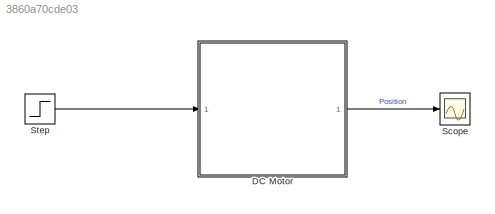
MODEL slx_3860a70cde03
KIND model
CONFIG AbsTol = auto
CONFIG EnableMultiTasking = off
CONFIG FixedStep = auto
CONFIG MaxStep = auto
CONFIG MinStep = auto
CONFIG RelTol = 1e-3
CONFIG SampleTimeConstraint = Unconstrained
CONFIG SolverName = VariableStepAuto
CONFIG StartTime = 0.0
CONFIG StopTime = 10.0
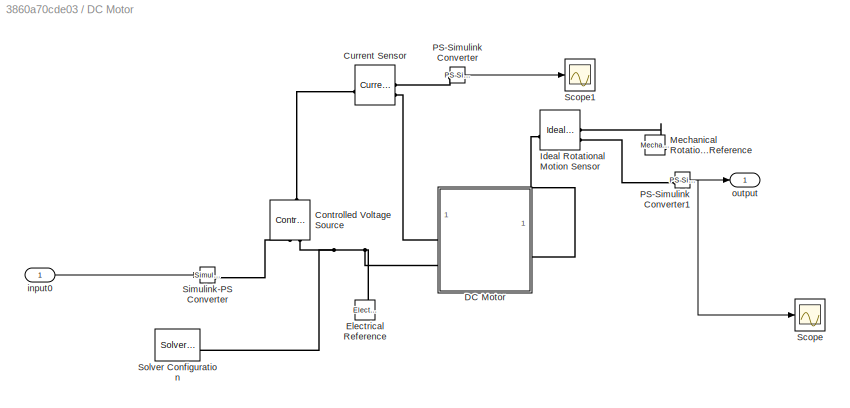
BLOCK [SubSystem] DC  Motor
BLOCK [Reference] DC  Motor/Controlled Voltage Source  REF=fl_lib/Electrical/Electrical Sources/Controlled Voltage
Source
  NameLocation = right
  SourceBlock = fl_lib/Electrical/Electrical Sources/Controlled Voltage\nSource
  SourceType = Controlled Voltage\nSource
BLOCK [Reference] DC  Motor/Current Sensor  REF=fl_lib/Electrical/Electrical Sensors/Current Sensor
  SourceBlock = fl_lib/Electrical/Electrical Sensors/Current Sensor
  SourceType = Current Sensor
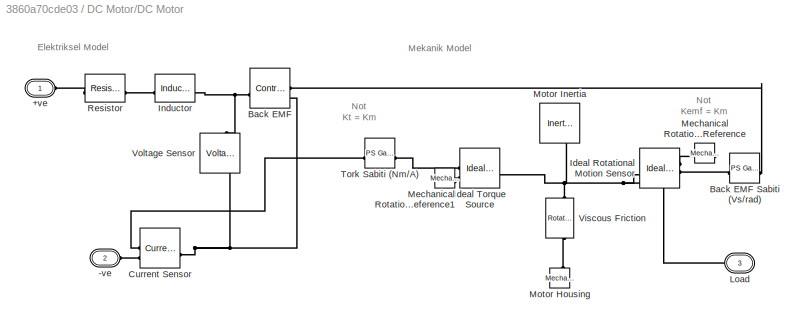
BLOCK [SubSystem] DC  Motor/DC  Motor
BLOCK [PMIOPort] DC  Motor/DC  Motor/+ve
  Side = Left
  Tag = PMCPort
BLOCK [PMIOPort] DC  Motor/DC  Motor/-ve
  Port = 2
  Side = Left
  Tag = PMCPort
BLOCK [Reference] DC  Motor/DC  Motor/Back EMF  REF=fl_lib/Electrical/Electrical Sources/Controlled Voltage
Source
  NameLocation = top
  SourceBlock = fl_lib/Electrical/Electrical Sources/Controlled Voltage\nSource
  SourceType = Controlled Voltage\nSource
BLOCK [Reference] DC  Motor/DC  Motor/Back EMF Sabiti (Vs//rad)  REF=fl_ps_legacy_lib/Legacy Physical
Signals/Functions/PS Gain
  SourceBlock = fl_ps_legacy_lib/Legacy Physical\nSignals/Functions/PS Gain
  SourceType = PS Gain
BLOCK [Reference] DC  Motor/DC  Motor/Current Sensor  REF=fl_lib/Electrical/Electrical Sensors/Current Sensor
  SourceBlock = fl_lib/Electrical/Electrical Sensors/Current Sensor
  SourceType = Current Sensor
BLOCK [Reference] DC  Motor/DC  Motor/Ideal Rotational Motion Sensor  REF=fl_lib/Mechanical/Mechanical Sensors/Ideal Rotational
Motion Sensor
  SourceBlock = fl_lib/Mechanical/Mechanical Sensors/Ideal Rotational\nMotion Sensor
  SourceType = Ideal Rotational\nMotion Sensor
BLOCK [Reference] DC  Motor/DC  Motor/Ideal Torque Source  REF=fl_lib/Mechanical/Mechanical Sources/Ideal Torque Source
  SourceBlock = fl_lib/Mechanical/Mechanical Sources/Ideal Torque Source
  SourceType = Ideal Torque Source
BLOCK [Reference] DC  Motor/DC  Motor/Inductor  REF=fl_lib/Electrical/Electrical Elements/Inductor
  SourceBlock = fl_lib/Electrical/Electrical Elements/Inductor
  SourceType = Inductor
BLOCK [PMIOPort] DC  Motor/DC  Motor/Load
  Port = 3
  Side = Right
BLOCK [Reference] DC  Motor/DC  Motor/Mechanical Rotational Reference  REF=fl_lib/Mechanical/Rotational Elements/Mechanical
Rotational Reference
  NameLocation = top
  SourceBlock = fl_lib/Mechanical/Rotational Elements/Mechanical\nRotational Reference
  SourceType = Mechanical\nRotational Reference
BLOCK [Reference] DC  Motor/DC  Motor/Mechanical Rotational Reference1  REF=fl_lib/Mechanical/Rotational Elements/Mechanical
Rotational Reference
  SourceBlock = fl_lib/Mechanical/Rotational Elements/Mechanical\nRotational Reference
  SourceType = Mechanical\nRotational Reference
BLOCK [Reference] DC  Motor/DC  Motor/Motor Housing  REF=fl_lib/Mechanical/Rotational Elements/Mechanical
Rotational Reference
  NameLocation = right
  SourceBlock = fl_lib/Mechanical/Rotational Elements/Mechanical\nRotational Reference
  SourceType = Mechanical\nRotational Reference
BLOCK [Reference] DC  Motor/DC  Motor/Motor Inertia  REF=fl_lib/Mechanical/Rotational Elements/Inertia
  NameLocation = left
  SourceBlock = fl_lib/Mechanical/Rotational Elements/Inertia
  SourceType = Inertia
BLOCK [Reference] DC  Motor/DC  Motor/Resistor  REF=fl_lib/Electrical/Electrical Elements/Resistor
  SourceBlock = fl_lib/Electrical/Electrical Elements/Resistor
  SourceType = Resistor
BLOCK [Reference] DC  Motor/DC  Motor/Tork Sabiti (Nm//A)  REF=fl_ps_legacy_lib/Legacy Physical
Signals/Functions/PS Gain
  SourceBlock = fl_ps_legacy_lib/Legacy Physical\nSignals/Functions/PS Gain
  SourceType = PS Gain
BLOCK [Reference] DC  Motor/DC  Motor/Viscous Friction  REF=fl_lib/Mechanical/Rotational Elements/Rotational Damper
  NameLocation = right
  SourceBlock = fl_lib/Mechanical/Rotational Elements/Rotational Damper
  SourceType = Rotational Damper
BLOCK [Reference] DC  Motor/DC  Motor/Voltage Sensor  REF=fl_lib/Electrical/Electrical Sensors/Voltage Sensor
  NameLocation = right
  SourceBlock = fl_lib/Electrical/Electrical Sensors/Voltage Sensor
  SourceType = Voltage Sensor
BLOCK [Reference] DC  Motor/Electrical Reference  REF=fl_lib/Electrical/Electrical Elements/Electrical Reference
  NameLocation = right
  SourceBlock = fl_lib/Electrical/Electrical Elements/Electrical Reference
  SourceType = Electrical Reference
BLOCK [Reference] DC  Motor/Ideal Rotational Motion Sensor  REF=fl_lib/Mechanical/Mechanical Sensors/Ideal Rotational
Motion Sensor
  SourceBlock = fl_lib/Mechanical/Mechanical Sensors/Ideal Rotational\nMotion Sensor
  SourceType = Ideal Rotational\nMotion Sensor
BLOCK [Reference] DC  Motor/Mechanical Rotational Reference  REF=fl_lib/Mechanical/Rotational Elements/Mechanical
Rotational Reference
  NameLocation = top
  SourceBlock = fl_lib/Mechanical/Rotational Elements/Mechanical\nRotational Reference
  SourceType = Mechanical\nRotational Reference
BLOCK [Reference] DC  Motor/PS-Simulink Converter  REF=nesl_utility/PS-Simulink
Converter
  SourceBlock = nesl_utility/PS-Simulink\nConverter
  SourceType = PS-Simulink\nConverter
BLOCK [Reference] DC  Motor/PS-Simulink Converter1  REF=nesl_utility/PS-Simulink
Converter
  SourceBlock = nesl_utility/PS-Simulink\nConverter
  SourceType = PS-Simulink\nConverter
BLOCK [Scope] DC  Motor/Scope
  Floating = off
  NumInputPorts = 1
  ScopeSpecificationString = Simulink.scopes.TimeScopeBlockCfg('CurrentConfiguration', extmgr.ConfigurationSet(extmgr.Configuration('Core','General UI',true),extmgr.Configuration('Core','Source UI',true),extmgr.Configuration('Sources','WiredSimulink',true,'DataLoggingVariableName','ScopeData1'),extmgr.Configuration('Visuals','Time Domain',true,'SerializedDisplays',{struct('MinYLimReal','-0.000000000000000000000000000005','Max...<+1600ch>
BLOCK [Scope] DC  Motor/Scope1
  Floating = off
  NumInputPorts = 1
  ScopeSpecificationString = Simulink.scopes.TimeScopeBlockCfg('CurrentConfiguration', extmgr.ConfigurationSet(extmgr.Configuration('Core','General UI',true),extmgr.Configuration('Core','Source UI',true),extmgr.Configuration('Sources','WiredSimulink',true,'DataLoggingVariableName','ScopeData1'),extmgr.Configuration('Visuals','Time Domain',true,'SerializedDisplays',{struct('MinYLimReal','-0.06579','MaxYLimReal','0.59208','YLab...<+1380ch>
BLOCK [Reference] DC  Motor/Simulink-PS Converter  REF=nesl_utility/Simulink-PS
Converter
  SourceBlock = nesl_utility/Simulink-PS\nConverter
  SourceType = Simulink-PS\nConverter
BLOCK [Reference] DC  Motor/Solver Configuration  REF=nesl_utility/Solver
Configuration
  SourceBlock = nesl_utility/Solver\nConfiguration
  SourceType = Solver\nConfiguration
BLOCK [Inport] DC  Motor/input0
BLOCK [Outport] DC  Motor/output
BLOCK [Scope] Scope
  Floating = off
  NumInputPorts = 1
  ScopeSpecificationString = Simulink.scopes.TimeScopeBlockCfg('CurrentConfiguration', extmgr.ConfigurationSet(extmgr.Configuration('Core','General UI',true),extmgr.Configuration('Core','Source UI',true),extmgr.Configuration('Sources','WiredSimulink',true,'DataLoggingVariableName','ScopeData2'),extmgr.Configuration('Visuals','Time Domain',true),extmgr.Configuration('Tools','Plot Navigation',true),extmgr.Configuration('Tools',...<+40ch>
BLOCK [Step] Step
  SampleTime = 0
  Time = 0
ANNOTATION DC  Motor/DC  Motor: Elektriksel Model
ANNOTATION DC  Motor/DC  Motor: Mekanik Model
ANNOTATION DC  Motor/DC  Motor: Not Kemf = Km
ANNOTATION DC  Motor/DC  Motor: Not Kt = Km
NET DC  Motor/PS-Simulink Converter1:1 -> DC  Motor/Scope:1, DC  Motor/output:1
LINE DC  Motor/PS-Simulink Converter:1 -> DC  Motor/Scope1:1
LINE DC  Motor/input0:1 -> DC  Motor/Simulink-PS Converter:1
LINE DC  Motor:1 -> Scope:1
LINE Step:1 -> DC  Motor:1
PLINE DC  Motor/Controlled Voltage Source:LConn1 -- DC  Motor/Current Sensor:LConn1
PLINE DC  Motor/Controlled Voltage Source:RConn1 -- DC  Motor/Simulink-PS Converter:RConn1
PNET net1: DC  Motor/Controlled Voltage Source:RConn2 -- DC  Motor/DC  Motor:LConn2 -- DC  Motor/Electrical Reference:LConn1 -- DC  Motor/Solver Configuration:RConn1
PLINE DC  Motor/Current Sensor:RConn1 -- DC  Motor/PS-Simulink Converter:LConn1
PLINE DC  Motor/Current Sensor:RConn2 -- DC  Motor/DC  Motor:LConn1
PLINE DC  Motor/DC  Motor/+ve:RConn1 -- DC  Motor/DC  Motor/Resistor:LConn1
PLINE DC  Motor/DC  Motor/-ve:RConn1 -- DC  Motor/DC  Motor/Current Sensor:RConn2
PLINE DC  Motor/DC  Motor/Back EMF Sabiti (Vs//rad):LConn1 -- DC  Motor/DC  Motor/Ideal Rotational Motion Sensor:RConn2
PLINE DC  Motor/DC  Motor/Back EMF Sabiti (Vs//rad):RConn1 -- DC  Motor/DC  Motor/Back EMF:RConn1
PNET net2: DC  Motor/DC  Motor/Back EMF:LConn1 -- DC  Motor/DC  Motor/Inductor:RConn1 -- DC  Motor/DC  Motor/Voltage Sensor:LConn1
PNET net3: DC  Motor/DC  Motor/Back EMF:RConn2 -- DC  Motor/DC  Motor/Current Sensor:LConn1 -- DC  Motor/DC  Motor/Voltage Sensor:RConn2
PLINE DC  Motor/DC  Motor/Current Sensor:RConn1 -- DC  Motor/DC  Motor/Tork Sabiti (Nm//A):LConn1
PNET net4: DC  Motor/DC  Motor/Ideal Rotational Motion Sensor:LConn1 -- DC  Motor/DC  Motor/Ideal Torque Source:LConn1 -- DC  Motor/DC  Motor/Load:RConn1 -- DC  Motor/DC  Motor/Motor Inertia:LConn1 -- DC  Motor/DC  Motor/Viscous Friction:RConn1
PLINE DC  Motor/DC  Motor/Ideal Rotational Motion Sensor:RConn1 -- DC  Motor/DC  Motor/Mechanical Rotational Reference:LConn1
PLINE DC  Motor/DC  Motor/Ideal Torque Source:RConn1 -- DC  Motor/DC  Motor/Tork Sabiti (Nm//A):RConn1
PLINE DC  Motor/DC  Motor/Ideal Torque Source:RConn2 -- DC  Motor/DC  Motor/Mechanical Rotational Reference1:LConn1
PLINE DC  Motor/DC  Motor/Inductor:LConn1 -- DC  Motor/DC  Motor/Resistor:RConn1
PLINE DC  Motor/DC  Motor/Motor Housing:LConn1 -- DC  Motor/DC  Motor/Viscous Friction:LConn1
PLINE DC  Motor/DC  Motor:RConn1 -- DC  Motor/Ideal Rotational Motion Sensor:LConn1
PLINE DC  Motor/Ideal Rotational Motion Sensor:RConn1 -- DC  Motor/Mechanical Rotational Reference:LConn1
PLINE DC  Motor/Ideal Rotational Motion Sensor:RConn2 -- DC  Motor/PS-Simulink Converter1:LConn1
note: NET lines group one-source signal fan-out (src -> all destinations, sorted); 1:1 wires keep LINE; PNET lines group multi-terminal physical nets as a canonical sorted terminal list (undirected conserving connections); 2-terminal nets keep the pairwise PLINE form
